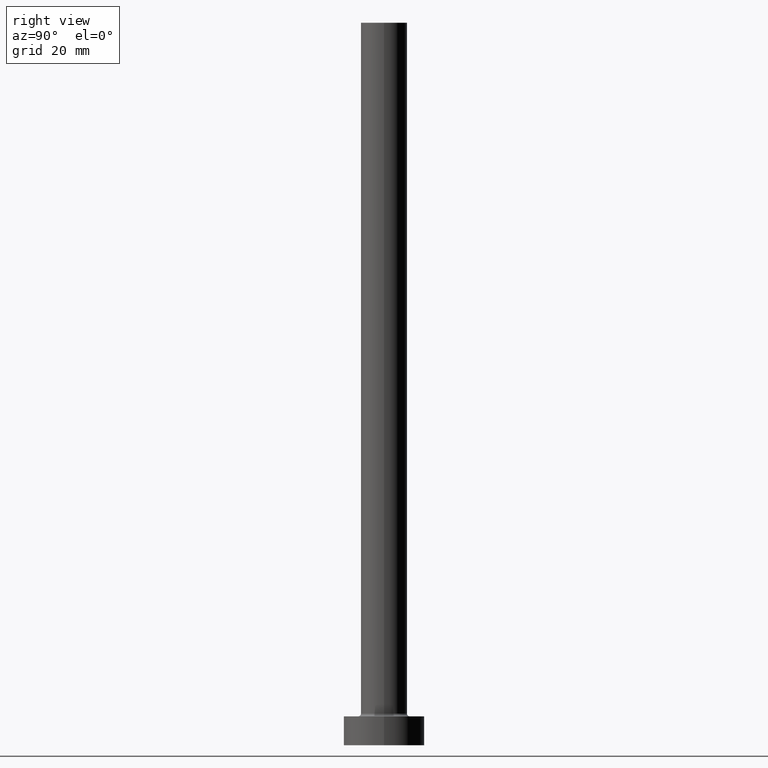
[diagram: clean part render]
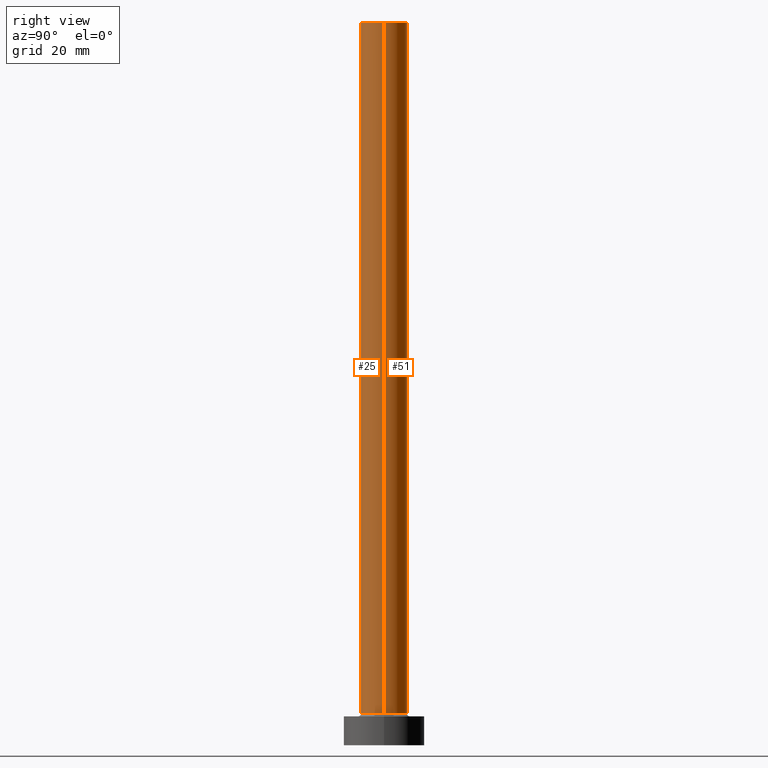
[diagram: same view with one multi-face feature highlighted, each face labeled with its STEP entity id]
A machine part, right view. The highlighted faces form ONE feature: a constant-radius fillet chain: 2 tangent blend faces with common blend radius 4 mm. The faces share edges in the B-rep.
Their STEP definitions:
[1] entity #51 (Cylinder):
#6 = LINE ( 'NONE', #282, #92 ) ;
#51 = ADVANCED_FACE ( 'NONE', ( #265 ), #96, .T. ) ;
#62 = EDGE_CURVE ( 'NONE', #158, #221, #188, .T. ) ;
#92 = VECTOR ( 'NONE', #394, 1000.000000000000000 ) ;
#96 = CYLINDRICAL_SURFACE ( 'NONE', #450, 4.000000000000000000 ) ;
#98 = DIRECTION ( 'NONE',  ( -0.000000000000000000, -0.000000000000000000, -1.000000000000000000 ) ) ;
#118 = VERTEX_POINT ( 'NONE', #162 ) ;
#136 = VECTOR ( 'NONE', #279, 1000.000000000000000 ) ;
#140 = CARTESIAN_POINT ( 'NONE',  ( -4.000000000000000000, 0.000000000000000000, 5.500000000000005329 ) ) ;
#145 = DIRECTION ( 'NONE',  ( 0.000000000000000000, 0.000000000000000000, 1.000000000000000000 ) ) ;
#154 = ORIENTED_EDGE ( 'NONE', *, *, #419, .T. ) ;
#158 = VERTEX_POINT ( 'NONE', #208 ) ;
#162 = CARTESIAN_POINT ( 'NONE',  ( -4.000000000000000000, 0.000000000000000000, 125.0000000000000000 ) ) ;
#164 = ORIENTED_EDGE ( 'NONE', *, *, #62, .T. ) ;
#173 = LINE ( 'NONE', #312, #136 ) ;
#188 = CIRCLE ( 'NONE', #215, 4.000000000000000000 ) ;
#201 = EDGE_CURVE ( 'NONE', #118, #221, #173, .T. ) ;
#208 = CARTESIAN_POINT ( 'NONE',  ( 4.000000000000000000, 4.898587196589412829E-16, 5.500000000000005329 ) ) ;
#214 = ORIENTED_EDGE ( 'NONE', *, *, #222, .F. ) ;
#215 = AXIS2_PLACEMENT_3D ( 'NONE', #377, #442, #380 ) ;
#221 = VERTEX_POINT ( 'NONE', #140 ) ;
#222 = EDGE_CURVE ( 'NONE', #435, #118, #249, .T. ) ;
#230 = DIRECTION ( 'NONE',  ( -1.000000000000000000, 0.000000000000000000, 0.000000000000000000 ) ) ;
#249 = CIRCLE ( 'NONE', #318, 4.000000000000000000 ) ;
#265 = FACE_OUTER_BOUND ( 'NONE', #366, .T. ) ;
#279 = DIRECTION ( 'NONE',  ( -0.000000000000000000, -0.000000000000000000, -1.000000000000000000 ) ) ;
#282 = CARTESIAN_POINT ( 'NONE',  ( 4.000000000000000000, 4.898587196589412829E-16, 125.0000000000000000 ) ) ;
#291 = CARTESIAN_POINT ( 'NONE',  ( 4.000000000000000000, 4.898587196589412829E-16, 125.0000000000000000 ) ) ;
#312 = CARTESIAN_POINT ( 'NONE',  ( -4.000000000000000000, 0.000000000000000000, 125.0000000000000000 ) ) ;
#318 = AXIS2_PLACEMENT_3D ( 'NONE', #349, #145, #383 ) ;
#349 = CARTESIAN_POINT ( 'NONE',  ( 0.000000000000000000, 0.000000000000000000, 125.0000000000000000 ) ) ;
#366 = EDGE_LOOP ( 'NONE', ( #214, #154, #164, #398 ) ) ;
#377 = CARTESIAN_POINT ( 'NONE',  ( 0.000000000000000000, 0.000000000000000000, 5.500000000000005329 ) ) ;
#380 = DIRECTION ( 'NONE',  ( 1.000000000000000000, 0.000000000000000000, 0.000000000000000000 ) ) ;
#383 = DIRECTION ( 'NONE',  ( 1.000000000000000000, 0.000000000000000000, 0.000000000000000000 ) ) ;
#394 = DIRECTION ( 'NONE',  ( -0.000000000000000000, -0.000000000000000000, -1.000000000000000000 ) ) ;
#398 = ORIENTED_EDGE ( 'NONE', *, *, #201, .F. ) ;
#411 = CARTESIAN_POINT ( 'NONE',  ( 0.000000000000000000, 0.000000000000000000, 125.0000000000000000 ) ) ;
#419 = EDGE_CURVE ( 'NONE', #435, #158, #6, .T. ) ;
#435 = VERTEX_POINT ( 'NONE', #291 ) ;
#442 = DIRECTION ( 'NONE',  ( 0.000000000000000000, 0.000000000000000000, 1.000000000000000000 ) ) ;
#450 = AXIS2_PLACEMENT_3D ( 'NONE', #411, #98, #230 ) ;
[2] entity #25 (Cylinder):
#6 = LINE ( 'NONE', #282, #92 ) ;
#25 = ADVANCED_FACE ( 'NONE', ( #262 ), #299, .T. ) ;
#33 = CARTESIAN_POINT ( 'NONE',  ( 0.000000000000000000, 0.000000000000000000, 125.0000000000000000 ) ) ;
#35 = DIRECTION ( 'NONE',  ( 1.000000000000000000, 0.000000000000000000, 0.000000000000000000 ) ) ;
#37 = AXIS2_PLACEMENT_3D ( 'NONE', #33, #355, #35 ) ;
#92 = VECTOR ( 'NONE', #394, 1000.000000000000000 ) ;
#112 = CIRCLE ( 'NONE', #37, 4.000000000000000000 ) ;
#118 = VERTEX_POINT ( 'NONE', #162 ) ;
#122 = EDGE_LOOP ( 'NONE', ( #191, #395, #175, #342 ) ) ;
#136 = VECTOR ( 'NONE', #279, 1000.000000000000000 ) ;
#140 = CARTESIAN_POINT ( 'NONE',  ( -4.000000000000000000, 0.000000000000000000, 5.500000000000005329 ) ) ;
#141 = AXIS2_PLACEMENT_3D ( 'NONE', #277, #347, #171 ) ;
#155 = CIRCLE ( 'NONE', #141, 4.000000000000000000 ) ;
#158 = VERTEX_POINT ( 'NONE', #208 ) ;
#162 = CARTESIAN_POINT ( 'NONE',  ( -4.000000000000000000, 0.000000000000000000, 125.0000000000000000 ) ) ;
#171 = DIRECTION ( 'NONE',  ( 1.000000000000000000, 0.000000000000000000, 0.000000000000000000 ) ) ;
#173 = LINE ( 'NONE', #312, #136 ) ;
#175 = ORIENTED_EDGE ( 'NONE', *, *, #201, .T. ) ;
#191 = ORIENTED_EDGE ( 'NONE', *, *, #419, .F. ) ;
#201 = EDGE_CURVE ( 'NONE', #118, #221, #173, .T. ) ;
#204 = DIRECTION ( 'NONE',  ( -1.000000000000000000, 0.000000000000000000, 0.000000000000000000 ) ) ;
#208 = CARTESIAN_POINT ( 'NONE',  ( 4.000000000000000000, 4.898587196589412829E-16, 5.500000000000005329 ) ) ;
#209 = AXIS2_PLACEMENT_3D ( 'NONE', #409, #417, #204 ) ;
#221 = VERTEX_POINT ( 'NONE', #140 ) ;
#235 = EDGE_CURVE ( 'NONE', #118, #435, #112, .T. ) ;
#254 = EDGE_CURVE ( 'NONE', #221, #158, #155, .T. ) ;
#262 = FACE_OUTER_BOUND ( 'NONE', #122, .T. ) ;
#277 = CARTESIAN_POINT ( 'NONE',  ( 0.000000000000000000, 0.000000000000000000, 5.500000000000005329 ) ) ;
#279 = DIRECTION ( 'NONE',  ( -0.000000000000000000, -0.000000000000000000, -1.000000000000000000 ) ) ;
#282 = CARTESIAN_POINT ( 'NONE',  ( 4.000000000000000000, 4.898587196589412829E-16, 125.0000000000000000 ) ) ;
#291 = CARTESIAN_POINT ( 'NONE',  ( 4.000000000000000000, 4.898587196589412829E-16, 125.0000000000000000 ) ) ;
#299 = CYLINDRICAL_SURFACE ( 'NONE', #209, 4.000000000000000000 ) ;
#312 = CARTESIAN_POINT ( 'NONE',  ( -4.000000000000000000, 0.000000000000000000, 125.0000000000000000 ) ) ;
#342 = ORIENTED_EDGE ( 'NONE', *, *, #254, .T. ) ;
#347 = DIRECTION ( 'NONE',  ( 0.000000000000000000, 0.000000000000000000, 1.000000000000000000 ) ) ;
#355 = DIRECTION ( 'NONE',  ( 0.000000000000000000, 0.000000000000000000, 1.000000000000000000 ) ) ;
#394 = DIRECTION ( 'NONE',  ( -0.000000000000000000, -0.000000000000000000, -1.000000000000000000 ) ) ;
#395 = ORIENTED_EDGE ( 'NONE', *, *, #235, .F. ) ;
#409 = CARTESIAN_POINT ( 'NONE',  ( 0.000000000000000000, 0.000000000000000000, 125.0000000000000000 ) ) ;
#417 = DIRECTION ( 'NONE',  ( -0.000000000000000000, -0.000000000000000000, -1.000000000000000000 ) ) ;
#419 = EDGE_CURVE ( 'NONE', #435, #158, #6, .T. ) ;
#435 = VERTEX_POINT ( 'NONE', #291 ) ;